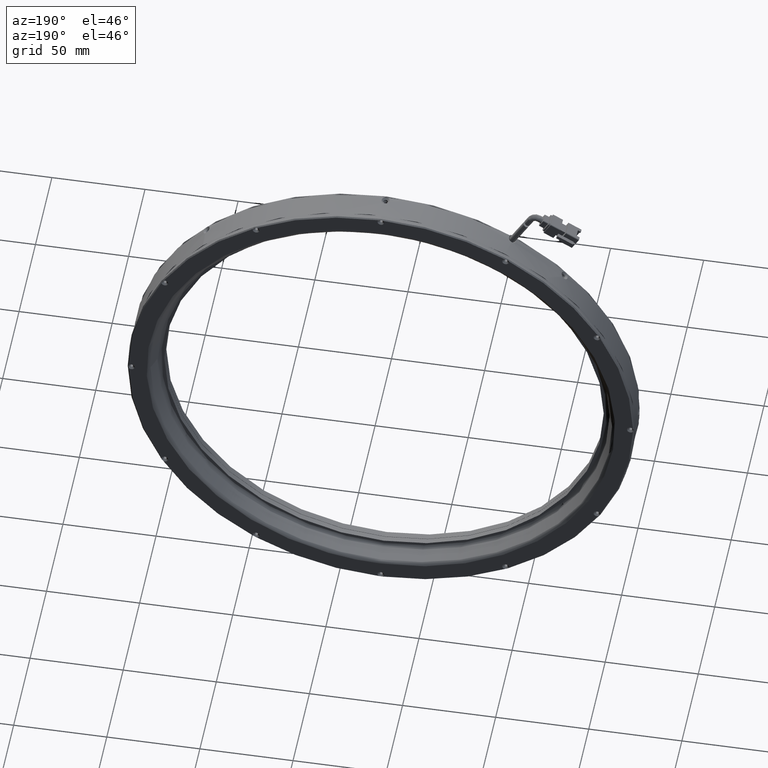
[diagram: clean part render]
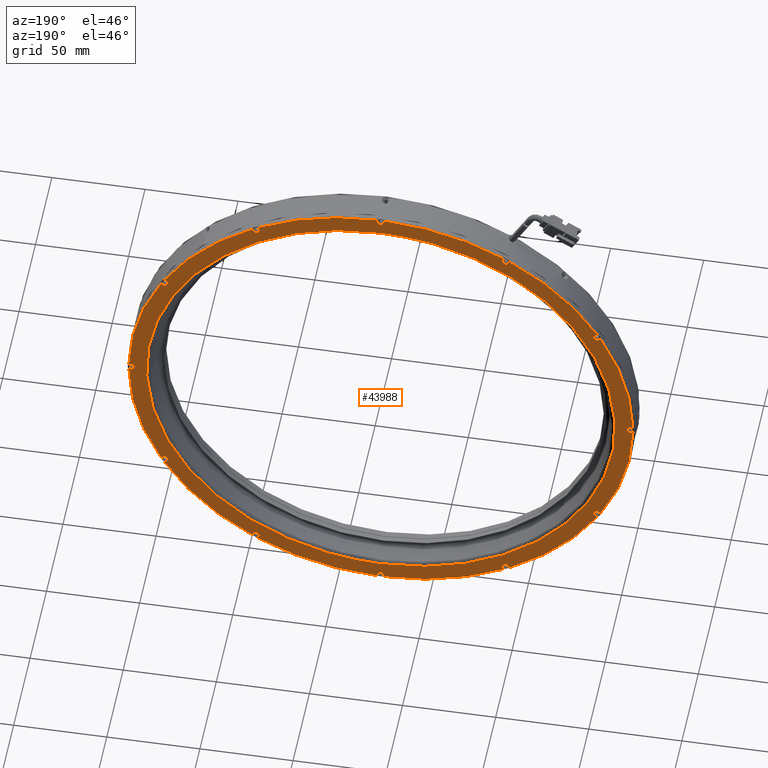
[diagram: same view with one face highlighted and labeled with its STEP entity id]
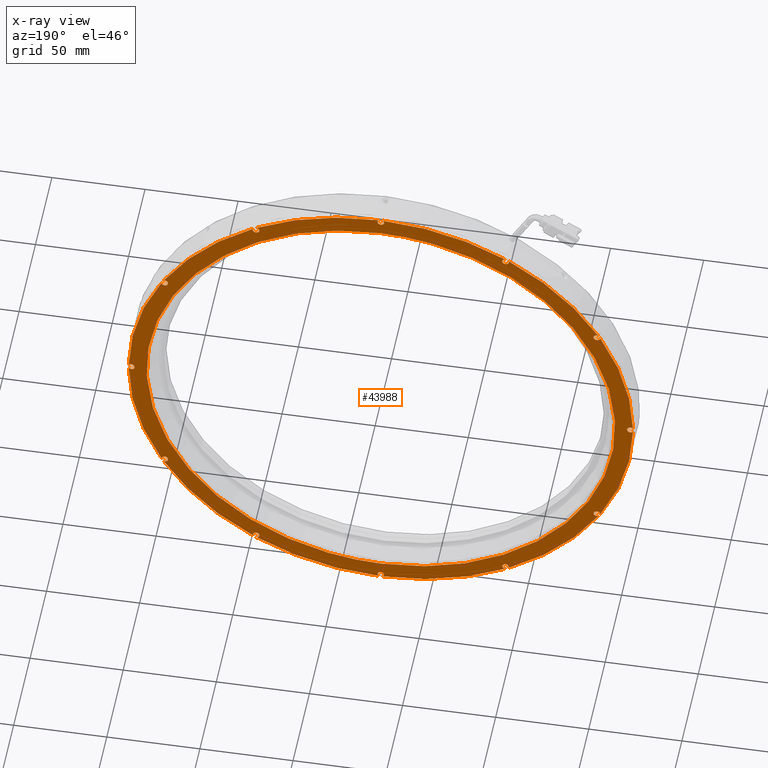
[diagram: x-ray of the same camera — body ghosted, the highlighted face saturated]
A machine part, auxiliary view. The second image highlights one B-rep face of the part: STEP entity #43988.
The next image is the same camera in x-ray: the body ghosted, the highlighted face saturated — about 0% of this face is hidden behind the body in this view.
In plain terms, the highlighted planar face has unit normal (0, -1, 0).
Its self-contained STEP definition (entity closure, byte-faithful):
#87 = EDGE_CURVE ( 'NONE', #46055, #33468, #56212, .T. ) ;
#397 = VERTEX_POINT ( 'NONE', #58740 ) ;
#735 = CIRCLE ( 'NONE', #42171, 1.800000000051801900 ) ;
#954 = ORIENTED_EDGE ( 'NONE', *, *, #66120, .F. ) ;
#1461 = CARTESIAN_POINT ( 'NONE',  ( -139.3504127892694600, 14.57220789511492700, 66.99999999999849400 ) ) ;
#1483 = DIRECTION ( 'NONE',  ( 1.000000000000000000, -2.562368502181399500E-017, 0.0000000000000000000 ) ) ;
#1619 = ORIENTED_EDGE ( 'NONE', *, *, #57725, .F. ) ;
#1810 = DIRECTION ( 'NONE',  ( -0.0000000000000000000, 1.000000000000000000, 0.0000000000000000000 ) ) ;
#2134 = CARTESIAN_POINT ( 'NONE',  ( -23.30300868215522000, 14.57220789505808300, 133.9999999999999700 ) ) ;
#2263 = EDGE_CURVE ( 'NONE', #45744, #34511, #88742, .T. ) ;
#2320 = DIRECTION ( 'NONE',  ( -0.0000000000000000000, 1.000000000000000000, 0.0000000000000000000 ) ) ;
#2548 = AXIS2_PLACEMENT_3D ( 'NONE', #1461, #73803, #11771 ) ;
#2838 = CIRCLE ( 'NONE', #2548, 1.800000000011667400 ) ;
#3347 = AXIS2_PLACEMENT_3D ( 'NONE', #93757, #31766, #104214 ) ;
#3668 = DIRECTION ( 'NONE',  ( -0.0000000000000000000, 1.000000000000000000, 0.0000000000000000000 ) ) ;
#3763 =( BOUNDED_CURVE ( )  B_SPLINE_CURVE ( 3, ( #86493, #3802, #96914, #34889 ),
 .UNSPECIFIED., .F., .F. ) 
 B_SPLINE_CURVE_WITH_KNOTS ( ( 4, 4 ),
 ( 0.0000000000000000000, 1.000000000000000000 ),
 .UNSPECIFIED. ) 
 CURVE ( )  GEOMETRIC_REPRESENTATION_ITEM ( )  RATIONAL_B_SPLINE_CURVE ( ( 1.000000000000000000, 0.3333333333333333700, 0.3333333333333333700, 1.000000000000000000 ) ) 
 REPRESENTATION_ITEM ( '' )  );
#3802 = CARTESIAN_POINT ( 'NONE',  ( -274.9155533077851600, 14.57220789505952600, -125.8062723128157400 ) ) ;
#4194 = CIRCLE ( 'NONE', #4631, 1.800000000053592100 ) ;
#4388 = AXIS2_PLACEMENT_3D ( 'NONE', #58273, #130742, #68716 ) ;
#4474 = FACE_OUTER_BOUND ( 'NONE', #57954, .T. ) ;
#4631 = AXIS2_PLACEMENT_3D ( 'NONE', #83107, #21106, #93501 ) ;
#4694 = DIRECTION ( 'NONE',  ( 0.0000000000000000000, 0.0000000000000000000, 1.000000000000000000 ) ) ;
#5810 = EDGE_CURVE ( 'NONE', #49932, #61310, #2838, .T. ) ;
#6170 = CARTESIAN_POINT ( 'NONE',  ( -23.30300868215334700, 14.57220789505808300, -132.2000000000116700 ) ) ;
#6945 = VERTEX_POINT ( 'NONE', #41454 ) ;
#7574 = VERTEX_POINT ( 'NONE', #13245 ) ;
#8687 = CARTESIAN_POINT ( 'NONE',  ( -23.30300868215522000, 14.57220789505808300, 132.1999999999825400 ) ) ;
#8778 = EDGE_CURVE ( 'NONE', #397, #77157, #28295, .T. ) ;
#10345 = EDGE_CURVE ( 'NONE', #123200, #126347, #79310, .T. ) ;
#10393 = VERTEX_POINT ( 'NONE', #64913 ) ;
#10632 = DIRECTION ( 'NONE',  ( -0.0000000000000000000, 1.000000000000000000, 0.0000000000000000000 ) ) ;
#10795 = DIRECTION ( 'NONE',  ( -2.551063935260010300E-017, -1.000000000000000000, 0.0000000000000000000 ) ) ;
#11413 = EDGE_CURVE ( 'NONE', #80408, #13850, #20533, .T. ) ;
#11771 = DIRECTION ( 'NONE',  ( 0.0000000000000000000, 0.0000000000000000000, 1.000000000000000000 ) ) ;
#12234 = EDGE_CURVE ( 'NONE', #126347, #46055, #86379, .T. ) ;
#12463 = DIRECTION ( 'NONE',  ( 0.0000000000000000000, 0.0000000000000000000, 1.000000000000000000 ) ) ;
#12491 = AXIS2_PLACEMENT_3D ( 'NONE', #23670, #96088, #34083 ) ;
#12924 = CARTESIAN_POINT ( 'NONE',  ( -23.30300868215381600, 14.57220789505951300, -2.420481350073888600E-014 ) ) ;
#13245 = CARTESIAN_POINT ( 'NONE',  ( -23.30300868215381600, 14.57220789505952000, -125.8062723128157400 ) ) ;
#13505 = DIRECTION ( 'NONE',  ( -0.0000000000000000000, 1.000000000000000000, 0.0000000000000000000 ) ) ;
#13600 = DIRECTION ( 'NONE',  ( -2.551063935260010300E-017, -1.000000000000000000, 0.0000000000000000000 ) ) ;
#13850 = VERTEX_POINT ( 'NONE', #103894 ) ;
#14361 = AXIS2_PLACEMENT_3D ( 'NONE', #53793, #126294, #64226 ) ;
#14508 = EDGE_CURVE ( 'NONE', #97987, #121566, #46320, .T. ) ;
#14540 = DIRECTION ( 'NONE',  ( -0.0000000000000000000, 1.000000000000000000, 0.0000000000000000000 ) ) ;
#15576 = AXIS2_PLACEMENT_3D ( 'NONE', #45725, #118216, #56133 ) ;
#15718 = DIRECTION ( 'NONE',  ( 0.0000000000000000000, -0.0000000000000000000, -1.000000000000000000 ) ) ;
#15798 = AXIS2_PLACEMENT_3D ( 'NONE', #33996, #106441, #44383 ) ;
#16383 = CARTESIAN_POINT ( 'NONE',  ( -24.44026429240801700, 14.57220789505466900, 135.3952238806009500 ) ) ;
#16869 = ORIENTED_EDGE ( 'NONE', *, *, #103349, .F. ) ;
#16916 = CIRCLE ( 'NONE', #115195, 1.800000000009224900 ) ;
#17733 = EDGE_CURVE ( 'NONE', #124441, #106722, #69343, .T. ) ;
#17745 = CIRCLE ( 'NONE', #105828, 1.800000000052620600 ) ;
#18331 = CARTESIAN_POINT ( 'NONE',  ( 43.69699131784510400, 14.57220789505808300, 116.0474041071154000 ) ) ;
#18583 = AXIS2_PLACEMENT_3D ( 'NONE', #76556, #14540, #86929 ) ;
#18642 = CARTESIAN_POINT ( 'NONE',  ( 110.6969913178461800, 14.57220789511492700, 9.114616613542514400E-013 ) ) ;
#18725 = EDGE_CURVE ( 'NONE', #121566, #31898, #65609, .T. ) ;
#18790 = CARTESIAN_POINT ( 'NONE',  ( 43.40971100904803100, 14.57220789505879000, -117.8243312368168500 ) ) ;
#19163 = ORIENTED_EDGE ( 'NONE', *, *, #42093, .F. ) ;
#19300 = CIRCLE ( 'NONE', #75859, 1.799999999988366500 ) ;
#20533 = CIRCLE ( 'NONE', #40922, 1.800000000010015800 ) ;
#20877 = EDGE_CURVE ( 'NONE', #59181, #70830, #59449, .T. ) ;
#21106 = DIRECTION ( 'NONE',  ( -0.0000000000000000000, 1.000000000000000000, 0.0000000000000000000 ) ) ;
#21908 = VERTEX_POINT ( 'NONE', #81665 ) ;
#22069 = CARTESIAN_POINT ( 'NONE',  ( 92.74439542496043000, 14.57220789511492700, 65.19999999999170400 ) ) ;
#22552 = CIRCLE ( 'NONE', #115596, 1.800000000009224900 ) ;
#23060 = AXIS2_PLACEMENT_3D ( 'NONE', #80660, #80223, #79763 ) ;
#23306 = DIRECTION ( 'NONE',  ( 1.000000000000000000, -2.562368502181398800E-017, 0.0000000000000000000 ) ) ;
#23670 = CARTESIAN_POINT ( 'NONE',  ( -90.30300868215356000, 14.57220789505808300, -116.0474041071149700 ) ) ;
#23973 = CARTESIAN_POINT ( 'NONE',  ( -24.44026429237689900, 14.57220789506076900, -135.3952238805951300 ) ) ;
#24236 = CARTESIAN_POINT ( 'NONE',  ( -139.3504127892685200, 14.57220789505808300, -65.19999999994755100 ) ) ;
#24411 = DIRECTION ( 'NONE',  ( -2.551063935260010300E-017, -1.000000000000000000, 0.0000000000000000000 ) ) ;
#24979 = EDGE_CURVE ( 'NONE', #65960, #31268, #22552, .T. ) ;
#25166 = DIRECTION ( 'NONE',  ( -0.0000000000000000000, 1.000000000000000000, 0.0000000000000000000 ) ) ;
#25331 = CARTESIAN_POINT ( 'NONE',  ( 93.38406694439618100, 14.57220789509844000, 68.68250418935548400 ) ) ;
#25369 = CARTESIAN_POINT ( 'NONE',  ( -158.6982325627267000, 14.57220789511215200, -1.137255610174809900 ) ) ;
#25894 = EDGE_CURVE ( 'NONE', #31898, #6945, #127590, .T. ) ;
#27183 = DIRECTION ( 'NONE',  ( -0.0000000000000000000, 1.000000000000000000, 0.0000000000000000000 ) ) ;
#27266 = CARTESIAN_POINT ( 'NONE',  ( 110.6969913178461800, 14.57220789511492700, 9.114616613542514400E-013 ) ) ;
#27951 = DIRECTION ( 'NONE',  ( -2.551063935260010300E-017, -1.000000000000000000, 0.0000000000000000000 ) ) ;
#28295 = CIRCLE ( 'NONE', #99376, 135.3999999999999800 ) ;
#28570 = EDGE_CURVE ( 'NONE', #29081, #126778, #84261, .T. ) ;
#28600 = FACE_BOUND ( 'NONE', #125757, .T. ) ;
#28697 = DIRECTION ( 'NONE',  ( 0.0000000000000000000, 0.0000000000000000000, 1.000000000000000000 ) ) ;
#28779 = DIRECTION ( 'NONE',  ( -2.551063935260010300E-017, -1.000000000000000000, 0.0000000000000000000 ) ) ;
#28843 = CARTESIAN_POINT ( 'NONE',  ( -139.9900843087045000, 14.57220789509791300, 68.68250418935535600 ) ) ;
#29015 = DIRECTION ( 'NONE',  ( 0.0000000000000000000, 0.0000000000000000000, 1.000000000000000000 ) ) ;
#29081 = VERTEX_POINT ( 'NONE', #6170 ) ;
#29533 = DIRECTION ( 'NONE',  ( -0.0000000000000000000, 1.000000000000000000, 0.0000000000000000000 ) ) ;
#29725 = CARTESIAN_POINT ( 'NONE',  ( -157.3030086821538300, 14.57220789511492700, -2.420481350073888600E-014 ) ) ;
#29869 = VERTEX_POINT ( 'NONE', #104143 ) ;
#31079 = CARTESIAN_POINT ( 'NONE',  ( 43.40971100907714200, 14.57220789505880500, 117.8243312368002500 ) ) ;
#31268 = VERTEX_POINT ( 'NONE', #93783 ) ;
#31766 = DIRECTION ( 'NONE',  ( -0.0000000000000000000, 1.000000000000000000, 0.0000000000000000000 ) ) ;
#31898 = VERTEX_POINT ( 'NONE', #96811 ) ;
#33468 = VERTEX_POINT ( 'NONE', #120287 ) ;
#33647 = CARTESIAN_POINT ( 'NONE',  ( 92.74439542496136800, 14.57220789505808300, -65.19999999994755100 ) ) ;
#33722 = ORIENTED_EDGE ( 'NONE', *, *, #43384, .F. ) ;
#33996 = CARTESIAN_POINT ( 'NONE',  ( 92.74439542496043000, 14.57220789511492700, 67.00000000000093800 ) ) ;
#34016 = ORIENTED_EDGE ( 'NONE', *, *, #132036, .F. ) ;
#34083 = DIRECTION ( 'NONE',  ( 0.0000000000000000000, 0.0000000000000000000, 1.000000000000000000 ) ) ;
#34511 = VERTEX_POINT ( 'NONE', #39410 ) ;
#34538 = EDGE_CURVE ( 'NONE', #13850, #49932, #133728, .T. ) ;
#34889 = CARTESIAN_POINT ( 'NONE',  ( -23.30300868215379500, 14.57220789505952000, 125.8062723128156900 ) ) ;
#35108 = ORIENTED_EDGE ( 'NONE', *, *, #8778, .F. ) ;
#35354 = CARTESIAN_POINT ( 'NONE',  ( -23.30300868215334700, 14.57220789505808300, -134.0000000000000300 ) ) ;
#36037 = CIRCLE ( 'NONE', #12491, 1.800000000053592100 ) ;
#36190 = AXIS2_PLACEMENT_3D ( 'NONE', #102613, #40608, #113062 ) ;
#36426 = ORIENTED_EDGE ( 'NONE', *, *, #10345, .F. ) ;
#37009 = CARTESIAN_POINT ( 'NONE',  ( 43.69699131784673800, 14.57220789505808300, -114.2474041070613900 ) ) ;
#37508 = EDGE_CURVE ( 'NONE', #31268, #65585, #16916, .T. ) ;
#37666 = DIRECTION ( 'NONE',  ( 0.0000000000000000000, 0.0000000000000000000, 1.000000000000000000 ) ) ;
#37987 = AXIS2_PLACEMENT_3D ( 'NONE', #29725, #102182, #40170 ) ;
#39287 = EDGE_CURVE ( 'NONE', #81361, #7574, #112495, .T. ) ;
#39410 = CARTESIAN_POINT ( 'NONE',  ( -157.3030086821538300, 14.57220789511492700, -1.799999999946091200 ) ) ;
#39667 = EDGE_CURVE ( 'NONE', #106722, #65960, #47889, .T. ) ;
#40170 = DIRECTION ( 'NONE',  ( 0.0000000000000000000, 0.0000000000000000000, 1.000000000000000000 ) ) ;
#40304 = CARTESIAN_POINT ( 'NONE',  ( -23.30300868215381600, 14.57220789505954000, -2.420481350073888600E-014 ) ) ;
#40507 = ORIENTED_EDGE ( 'NONE', *, *, #24979, .F. ) ;
#40608 = DIRECTION ( 'NONE',  ( -0.0000000000000000000, 1.000000000000000000, 0.0000000000000000000 ) ) ;
#40922 = AXIS2_PLACEMENT_3D ( 'NONE', #64236, #2320, #74655 ) ;
#41123 = ORIENTED_EDGE ( 'NONE', *, *, #111308, .F. ) ;
#41174 = CIRCLE ( 'NONE', #51204, 1.799999999946067000 ) ;
#41454 = CARTESIAN_POINT ( 'NONE',  ( 110.6969913178461800, 14.57220789511492700, 1.799999999946042800 ) ) ;
#42093 = EDGE_CURVE ( 'NONE', #33468, #80408, #63849, .T. ) ;
#42171 = AXIS2_PLACEMENT_3D ( 'NONE', #89161, #27183, #99563 ) ;
#42520 = VERTEX_POINT ( 'NONE', #60636 ) ;
#43367 = DIRECTION ( 'NONE',  ( -2.551063935260010300E-017, -1.000000000000000000, 0.0000000000000000000 ) ) ;
#43384 = EDGE_CURVE ( 'NONE', #80664, #108051, #17745, .T. ) ;
#43988 = ADVANCED_FACE ( 'NONE', ( #28600, #4474 ), #108559, .F. ) ;
#44383 = DIRECTION ( 'NONE',  ( 0.0000000000000000000, 0.0000000000000000000, 1.000000000000000000 ) ) ;
#44696 = CARTESIAN_POINT ( 'NONE',  ( -91.98551287156384100, 14.57220789504682800, -116.6870756265445100 ) ) ;
#45120 = EDGE_CURVE ( 'NONE', #7574, #81361, #3763, .T. ) ;
#45128 = EDGE_CURVE ( 'NONE', #97879, #10393, #96221, .T. ) ;
#45618 = AXIS2_PLACEMENT_3D ( 'NONE', #12924, #85298, #23306 ) ;
#45660 = AXIS2_PLACEMENT_3D ( 'NONE', #89950, #27951, #100355 ) ;
#45725 = CARTESIAN_POINT ( 'NONE',  ( -23.30300868215381600, 14.57220789505951300, -2.420481350073888600E-014 ) ) ;
#45727 = DIRECTION ( 'NONE',  ( 0.0000000000000000000, 0.0000000000000000000, 1.000000000000000000 ) ) ;
#45744 = VERTEX_POINT ( 'NONE', #51732 ) ;
#45856 = VERTEX_POINT ( 'NONE', #33647 ) ;
#45906 = CARTESIAN_POINT ( 'NONE',  ( 112.0922151984188300, 14.57220789511236000, 1.137255610174806800 ) ) ;
#46055 = VERTEX_POINT ( 'NONE', #16383 ) ;
#46320 = CIRCLE ( 'NONE', #53583, 135.3999999999999800 ) ;
#47181 = CARTESIAN_POINT ( 'NONE',  ( 228.3095359434775800, 14.57220789505952600, 125.8062723128156800 ) ) ;
#47889 = CIRCLE ( 'NONE', #15798, 1.800000000009224900 ) ;
#49741 = DIRECTION ( 'NONE',  ( -2.551063935260010300E-017, -1.000000000000000000, 0.0000000000000000000 ) ) ;
#49932 = VERTEX_POINT ( 'NONE', #28843 ) ;
#50119 = EDGE_CURVE ( 'NONE', #42520, #45744, #41174, .T. ) ;
#50571 = EDGE_CURVE ( 'NONE', #126982, #123200, #97534, .T. ) ;
#50612 = EDGE_CURVE ( 'NONE', #108051, #111894, #118599, .T. ) ;
#50673 = DIRECTION ( 'NONE',  ( 1.000000000000000000, -2.562368502181399500E-017, 0.0000000000000000000 ) ) ;
#51204 = AXIS2_PLACEMENT_3D ( 'NONE', #63704, #1810, #74140 ) ;
#51719 = ORIENTED_EDGE ( 'NONE', *, *, #2263, .F. ) ;
#51732 = CARTESIAN_POINT ( 'NONE',  ( -157.3030086821538300, 14.57220789511492700, 1.799999999946042800 ) ) ;
#52538 = DIRECTION ( 'NONE',  ( -0.0000000000000000000, 1.000000000000000000, 0.0000000000000000000 ) ) ;
#52576 = CARTESIAN_POINT ( 'NONE',  ( -90.30300868215518100, 14.57220789505808300, 116.0474041071139800 ) ) ;
#52727 = CARTESIAN_POINT ( 'NONE',  ( 43.69699131784510400, 14.57220789505808300, 116.0474041071154000 ) ) ;
#53205 = AXIS2_PLACEMENT_3D ( 'NONE', #65579, #3668, #75976 ) ;
#53583 = AXIS2_PLACEMENT_3D ( 'NONE', #111838, #49741, #122257 ) ;
#53793 = CARTESIAN_POINT ( 'NONE',  ( -139.3504127892685200, 14.57220789505808300, -67.00000000000017100 ) ) ;
#54138 = CARTESIAN_POINT ( 'NONE',  ( 92.74439542496043000, 14.57220789511492700, 67.00000000000093800 ) ) ;
#55417 = CIRCLE ( 'NONE', #36190, 1.800000000053134200 ) ;
#55467 = EDGE_CURVE ( 'NONE', #61310, #97879, #66116, .T. ) ;
#55481 = ORIENTED_EDGE ( 'NONE', *, *, #45120, .F. ) ;
#55978 = DIRECTION ( 'NONE',  ( -0.0000000000000000000, 1.000000000000000000, 0.0000000000000000000 ) ) ;
#56133 = DIRECTION ( 'NONE',  ( 1.000000000000000000, -2.562368502181398800E-017, 0.0000000000000000000 ) ) ;
#56212 = CIRCLE ( 'NONE', #23060, 135.4000000000000100 ) ;
#56492 = CARTESIAN_POINT ( 'NONE',  ( 94.52132255463308800, 14.57220789509844000, 66.71271969123243700 ) ) ;
#56976 = ORIENTED_EDGE ( 'NONE', *, *, #17733, .F. ) ;
#57119 = CARTESIAN_POINT ( 'NONE',  ( 92.74439542496136800, 14.57220789505808300, -68.80000000005115600 ) ) ;
#57172 = EDGE_CURVE ( 'NONE', #45856, #97987, #735, .T. ) ;
#57192 = AXIS2_PLACEMENT_3D ( 'NONE', #87178, #25166, #97601 ) ;
#57505 = ORIENTED_EDGE ( 'NONE', *, *, #39287, .F. ) ;
#57640 = CARTESIAN_POINT ( 'NONE',  ( -23.30300868215379500, 14.57220789505952000, 125.8062723128156900 ) ) ;
#57725 = EDGE_CURVE ( 'NONE', #126778, #71497, #63648, .T. ) ;
#57871 = EDGE_CURVE ( 'NONE', #125752, #397, #55417, .T. ) ;
#57891 = ORIENTED_EDGE ( 'NONE', *, *, #25894, .F. ) ;
#57954 = EDGE_LOOP ( 'NONE', ( #113003, #105165, #34016, #65766, #35108, #110305, #68155, #1619, #61466, #41123, #90979, #97454, #16869, #70119, #33722, #79228, #954, #132181, #93924, #51719, #84987, #88602, #79826, #122089, #102125, #131718, #96197, #19163, #113951, #88085, #36426, #132667, #87208, #126622, #69021, #60178, #40507, #77879, #56976, #104531, #57891, #125187 ) ) ;
#58101 = CARTESIAN_POINT ( 'NONE',  ( 228.3095359434775600, 14.57220789505952600, -125.8062723128157400 ) ) ;
#58112 = CIRCLE ( 'NONE', #126510, 135.3999999999999800 ) ;
#58273 = CARTESIAN_POINT ( 'NONE',  ( -23.30300868215334700, 14.57220789505808300, -134.0000000000000300 ) ) ;
#58303 = CARTESIAN_POINT ( 'NONE',  ( -22.16575307192955400, 14.57220789506098400, -135.3952238805949500 ) ) ;
#58337 = AXIS2_PLACEMENT_3D ( 'NONE', #118063, #55978, #128504 ) ;
#58532 = AXIS2_PLACEMENT_3D ( 'NONE', #72819, #10795, #83184 ) ;
#58740 = CARTESIAN_POINT ( 'NONE',  ( 45.37949550725633700, 14.57220789504692600, -116.6870756265443100 ) ) ;
#59181 = VERTEX_POINT ( 'NONE', #111789 ) ;
#59449 = CIRCLE ( 'NONE', #74901, 135.3999999999999800 ) ;
#60100 = AXIS2_PLACEMENT_3D ( 'NONE', #72654, #10632, #83031 ) ;
#60178 = ORIENTED_EDGE ( 'NONE', *, *, #37508, .F. ) ;
#60376 = CARTESIAN_POINT ( 'NONE',  ( -23.30300868215379500, 14.57220789505952000, 125.8062723128156900 ) ) ;
#60636 = CARTESIAN_POINT ( 'NONE',  ( -158.6982325627267000, 14.57220789511215200, 1.137255610174754800 ) ) ;
#61159 = EDGE_CURVE ( 'NONE', #100698, #126982, #65237, .T. ) ;
#61310 = VERTEX_POINT ( 'NONE', #123856 ) ;
#61466 = ORIENTED_EDGE ( 'NONE', *, *, #28570, .F. ) ;
#61566 = VERTEX_POINT ( 'NONE', #57119 ) ;
#62269 = CIRCLE ( 'NONE', #14361, 1.800000000052620600 ) ;
#62313 = EDGE_CURVE ( 'NONE', #34511, #96352, #76735, .T. ) ;
#62762 = CIRCLE ( 'NONE', #99369, 1.799999999945131300 ) ;
#63034 = DIRECTION ( 'NONE',  ( 0.0000000000000000000, 0.0000000000000000000, 1.000000000000000000 ) ) ;
#63166 = DIRECTION ( 'NONE',  ( 0.0000000000000000000, 0.0000000000000000000, 1.000000000000000000 ) ) ;
#63357 = DIRECTION ( 'NONE',  ( -2.551063935260010300E-017, -1.000000000000000000, 0.0000000000000000000 ) ) ;
#63648 = CIRCLE ( 'NONE', #45660, 135.4000000000000300 ) ;
#63704 = CARTESIAN_POINT ( 'NONE',  ( -157.3030086821538300, 14.57220789511492700, -2.420481350073888600E-014 ) ) ;
#63849 = CIRCLE ( 'NONE', #101226, 1.800000000010015800 ) ;
#64226 = DIRECTION ( 'NONE',  ( 0.0000000000000000000, 0.0000000000000000000, 1.000000000000000000 ) ) ;
#64236 = CARTESIAN_POINT ( 'NONE',  ( -90.30300868215518100, 14.57220789505808300, 116.0474041071139800 ) ) ;
#64575 = DIRECTION ( 'NONE',  ( 0.0000000000000000000, 0.0000000000000000000, 1.000000000000000000 ) ) ;
#64899 = CARTESIAN_POINT ( 'NONE',  ( 43.69699131784510400, 14.57220789505808300, 114.2474041071067900 ) ) ;
#64913 = CARTESIAN_POINT ( 'NONE',  ( -141.1273399189445600, 14.57220789509791300, 66.71271969122676600 ) ) ;
#65237 = CIRCLE ( 'NONE', #119310, 1.800000000008600300 ) ;
#65579 = CARTESIAN_POINT ( 'NONE',  ( 43.69699131784673800, 14.57220789505808300, -116.0474041071145200 ) ) ;
#65585 = VERTEX_POINT ( 'NONE', #25331 ) ;
#65609 = CIRCLE ( 'NONE', #3347, 1.799999999945131300 ) ;
#65766 = ORIENTED_EDGE ( 'NONE', *, *, #91257, .F. ) ;
#65960 = VERTEX_POINT ( 'NONE', #22069 ) ;
#66116 = CIRCLE ( 'NONE', #66154, 1.800000000011667400 ) ;
#66120 = EDGE_CURVE ( 'NONE', #29869, #114670, #117496, .T. ) ;
#66154 = AXIS2_PLACEMENT_3D ( 'NONE', #114616, #52538, #125070 ) ;
#66613 = DIRECTION ( 'NONE',  ( -0.0000000000000000000, 1.000000000000000000, 0.0000000000000000000 ) ) ;
#67418 = CARTESIAN_POINT ( 'NONE',  ( 94.52132255467834900, 14.57220789504721700, -66.71271969119824500 ) ) ;
#68155 = ORIENTED_EDGE ( 'NONE', *, *, #115753, .F. ) ;
#68716 = DIRECTION ( 'NONE',  ( 0.0000000000000000000, 0.0000000000000000000, 1.000000000000000000 ) ) ;
#69021 = ORIENTED_EDGE ( 'NONE', *, *, #83797, .F. ) ;
#69343 = CIRCLE ( 'NONE', #58532, 135.3999999999999800 ) ;
#70119 = ORIENTED_EDGE ( 'NONE', *, *, #50612, .F. ) ;
#70830 = VERTEX_POINT ( 'NONE', #23973 ) ;
#71497 = VERTEX_POINT ( 'NONE', #18790 ) ;
#71535 = CARTESIAN_POINT ( 'NONE',  ( -90.30300868215518100, 14.57220789505808300, 114.2474041071039600 ) ) ;
#72654 = CARTESIAN_POINT ( 'NONE',  ( -23.30300868215522000, 14.57220789505808300, 133.9999999999999700 ) ) ;
#72819 = CARTESIAN_POINT ( 'NONE',  ( -23.30300868215381600, 14.57220789505954000, -2.420481350073888600E-014 ) ) ;
#73803 = DIRECTION ( 'NONE',  ( -0.0000000000000000000, 1.000000000000000000, 0.0000000000000000000 ) ) ;
#74140 = DIRECTION ( 'NONE',  ( 0.0000000000000000000, 0.0000000000000000000, 1.000000000000000000 ) ) ;
#74206 = CARTESIAN_POINT ( 'NONE',  ( -90.30300868215356000, 14.57220789505808300, -114.2474041070613900 ) ) ;
#74466 = DIRECTION ( 'NONE',  ( -0.0000000000000000000, 1.000000000000000000, 0.0000000000000000000 ) ) ;
#74655 = DIRECTION ( 'NONE',  ( 0.0000000000000000000, 0.0000000000000000000, 1.000000000000000000 ) ) ;
#74901 = AXIS2_PLACEMENT_3D ( 'NONE', #125473, #63357, #1483 ) ;
#75508 = CARTESIAN_POINT ( 'NONE',  ( 92.74439542496043000, 14.57220789511492700, 67.00000000000093800 ) ) ;
#75617 = CARTESIAN_POINT ( 'NONE',  ( -23.30300868215381600, 14.57220789505954700, -2.420481350073888600E-014 ) ) ;
#75859 = AXIS2_PLACEMENT_3D ( 'NONE', #35354, #107805, #45727 ) ;
#75976 = DIRECTION ( 'NONE',  ( 0.0000000000000000000, 0.0000000000000000000, 1.000000000000000000 ) ) ;
#76368 = AXIS2_PLACEMENT_3D ( 'NONE', #52727, #125250, #63166 ) ;
#76556 = CARTESIAN_POINT ( 'NONE',  ( -139.3504127892694600, 14.57220789511492700, 66.99999999999849400 ) ) ;
#76735 = CIRCLE ( 'NONE', #37987, 1.799999999946067000 ) ;
#77157 = VERTEX_POINT ( 'NONE', #106811 ) ;
#77750 = DIRECTION ( 'NONE',  ( 0.0000000000000000000, -1.000000000000000000, 0.0000000000000000000 ) ) ;
#77879 = ORIENTED_EDGE ( 'NONE', *, *, #39667, .F. ) ;
#79228 = ORIENTED_EDGE ( 'NONE', *, *, #83215, .F. ) ;
#79310 = CIRCLE ( 'NONE', #117094, 1.800000000017454300 ) ;
#79763 = DIRECTION ( 'NONE',  ( 1.000000000000000000, -2.562368502181398800E-017, 0.0000000000000000000 ) ) ;
#79826 = ORIENTED_EDGE ( 'NONE', *, *, #45128, .F. ) ;
#80223 = DIRECTION ( 'NONE',  ( -2.551063935260010300E-017, -1.000000000000000000, 0.0000000000000000000 ) ) ;
#80408 = VERTEX_POINT ( 'NONE', #71535 ) ;
#80660 = CARTESIAN_POINT ( 'NONE',  ( -23.30300868215381600, 14.57220789505951300, -2.420481350073888600E-014 ) ) ;
#80664 = VERTEX_POINT ( 'NONE', #96788 ) ;
#80867 = AXIS2_PLACEMENT_3D ( 'NONE', #118965, #77750, #15718 ) ;
#81361 = VERTEX_POINT ( 'NONE', #60376 ) ;
#81665 = CARTESIAN_POINT ( 'NONE',  ( 45.37949550721237600, 14.57220789505659800, 116.6870756265589500 ) ) ;
#83031 = DIRECTION ( 'NONE',  ( 0.0000000000000000000, 0.0000000000000000000, 1.000000000000000000 ) ) ;
#83107 = CARTESIAN_POINT ( 'NONE',  ( -90.30300868215356000, 14.57220789505808300, -116.0474041071149700 ) ) ;
#83184 = DIRECTION ( 'NONE',  ( 1.000000000000000000, -2.562368502181399500E-017, 0.0000000000000000000 ) ) ;
#83215 = EDGE_CURVE ( 'NONE', #114670, #80664, #62269, .T. ) ;
#83221 = VERTEX_POINT ( 'NONE', #74206 ) ;
#83797 = EDGE_CURVE ( 'NONE', #65585, #21908, #111023, .T. ) ;
#84261 = CIRCLE ( 'NONE', #4388, 1.799999999988366500 ) ;
#84987 = ORIENTED_EDGE ( 'NONE', *, *, #50119, .F. ) ;
#85298 = DIRECTION ( 'NONE',  ( -2.551063935260010300E-017, -1.000000000000000000, 0.0000000000000000000 ) ) ;
#85539 = CARTESIAN_POINT ( 'NONE',  ( -139.3504127892694600, 14.57220789511492700, 65.19999999998682900 ) ) ;
#85868 = DIRECTION ( 'NONE',  ( 0.0000000000000000000, 0.0000000000000000000, 1.000000000000000000 ) ) ;
#85981 = DIRECTION ( 'NONE',  ( 1.000000000000000000, -2.562368502181399500E-017, 0.0000000000000000000 ) ) ;
#86379 = CIRCLE ( 'NONE', #60100, 1.800000000017454300 ) ;
#86429 = CARTESIAN_POINT ( 'NONE',  ( -23.30300868215381600, 14.57220789505951300, -2.420481350073888600E-014 ) ) ;
#86493 = CARTESIAN_POINT ( 'NONE',  ( -23.30300868215381600, 14.57220789505952000, -125.8062723128157400 ) ) ;
#86929 = DIRECTION ( 'NONE',  ( 0.0000000000000000000, 0.0000000000000000000, 1.000000000000000000 ) ) ;
#87178 = CARTESIAN_POINT ( 'NONE',  ( -139.3504127892685200, 14.57220789505808300, -67.00000000000017100 ) ) ;
#87208 = ORIENTED_EDGE ( 'NONE', *, *, #61159, .F. ) ;
#88085 = ORIENTED_EDGE ( 'NONE', *, *, #12234, .F. ) ;
#88602 = ORIENTED_EDGE ( 'NONE', *, *, #93638, .F. ) ;
#88742 = CIRCLE ( 'NONE', #125091, 1.799999999946067000 ) ;
#88748 = AXIS2_PLACEMENT_3D ( 'NONE', #40304, #112773, #50673 ) ;
#89161 = CARTESIAN_POINT ( 'NONE',  ( 92.74439542496136800, 14.57220789505808300, -66.99999999999934600 ) ) ;
#89950 = CARTESIAN_POINT ( 'NONE',  ( -23.30300868215381600, 14.57220789505950600, -2.420481350073888600E-014 ) ) ;
#90737 = CIRCLE ( 'NONE', #53205, 1.800000000053134200 ) ;
#90739 = DIRECTION ( 'NONE',  ( -0.0000000000000000000, 1.000000000000000000, 0.0000000000000000000 ) ) ;
#90811 = CARTESIAN_POINT ( 'NONE',  ( -23.30300868215381600, 14.57220789505954000, -2.420481350073888600E-014 ) ) ;
#90979 = ORIENTED_EDGE ( 'NONE', *, *, #20877, .F. ) ;
#91038 = DIRECTION ( 'NONE',  ( -0.0000000000000000000, 1.000000000000000000, 0.0000000000000000000 ) ) ;
#91257 = EDGE_CURVE ( 'NONE', #77157, #61566, #111163, .T. ) ;
#91568 = CARTESIAN_POINT ( 'NONE',  ( 92.74439542496136800, 14.57220789505808300, -66.99999999999934600 ) ) ;
#92703 = EDGE_CURVE ( 'NONE', #96352, #29869, #58112, .T. ) ;
#93501 = DIRECTION ( 'NONE',  ( 0.0000000000000000000, 0.0000000000000000000, 1.000000000000000000 ) ) ;
#93638 = EDGE_CURVE ( 'NONE', #10393, #42520, #109297, .T. ) ;
#93757 = CARTESIAN_POINT ( 'NONE',  ( 110.6969913178461800, 14.57220789511492700, 9.114616613542514400E-013 ) ) ;
#93783 = CARTESIAN_POINT ( 'NONE',  ( 92.74439542496043000, 14.57220789511492700, 68.80000000001015800 ) ) ;
#93924 = ORIENTED_EDGE ( 'NONE', *, *, #62313, .F. ) ;
#94039 = CARTESIAN_POINT ( 'NONE',  ( 112.0922151984189700, 14.57220789511222100, -1.137255610172573300 ) ) ;
#94380 = DIRECTION ( 'NONE',  ( 0.0000000000000000000, 0.0000000000000000000, 1.000000000000000000 ) ) ;
#96088 = DIRECTION ( 'NONE',  ( -0.0000000000000000000, 1.000000000000000000, 0.0000000000000000000 ) ) ;
#96197 = ORIENTED_EDGE ( 'NONE', *, *, #11413, .F. ) ;
#96221 = CIRCLE ( 'NONE', #18583, 1.800000000011667400 ) ;
#96352 = VERTEX_POINT ( 'NONE', #25369 ) ;
#96788 = CARTESIAN_POINT ( 'NONE',  ( -139.3504127892685200, 14.57220789505808300, -68.80000000005279000 ) ) ;
#96811 = CARTESIAN_POINT ( 'NONE',  ( 110.6969913178461800, 14.57220789511492700, -1.799999999944220000 ) ) ;
#96844 = DIRECTION ( 'NONE',  ( 1.000000000000000000, -2.562368502181398800E-017, 0.0000000000000000000 ) ) ;
#96914 = CARTESIAN_POINT ( 'NONE',  ( -274.9155533077851600, 14.57220789505952600, 125.8062723128157200 ) ) ;
#97454 = ORIENTED_EDGE ( 'NONE', *, *, #103970, .F. ) ;
#97534 = CIRCLE ( 'NONE', #106013, 135.3999999999999800 ) ;
#97601 = DIRECTION ( 'NONE',  ( 0.0000000000000000000, 0.0000000000000000000, 1.000000000000000000 ) ) ;
#97879 = VERTEX_POINT ( 'NONE', #85539 ) ;
#97987 = VERTEX_POINT ( 'NONE', #67418 ) ;
#99369 = AXIS2_PLACEMENT_3D ( 'NONE', #27266, #99652, #37666 ) ;
#99376 = AXIS2_PLACEMENT_3D ( 'NONE', #105415, #43367, #115847 ) ;
#99563 = DIRECTION ( 'NONE',  ( 0.0000000000000000000, 0.0000000000000000000, 1.000000000000000000 ) ) ;
#99652 = DIRECTION ( 'NONE',  ( -0.0000000000000000000, 1.000000000000000000, 0.0000000000000000000 ) ) ;
#100355 = DIRECTION ( 'NONE',  ( 1.000000000000000000, -2.562368502181398200E-017, 0.0000000000000000000 ) ) ;
#100698 = VERTEX_POINT ( 'NONE', #64899 ) ;
#101226 = AXIS2_PLACEMENT_3D ( 'NONE', #52576, #125114, #63034 ) ;
#101242 = DIRECTION ( 'NONE',  ( 1.000000000000000000, -2.562368502181399500E-017, 0.0000000000000000000 ) ) ;
#102005 = DIRECTION ( 'NONE',  ( 0.0000000000000000000, 0.0000000000000000000, 1.000000000000000000 ) ) ;
#102125 = ORIENTED_EDGE ( 'NONE', *, *, #5810, .F. ) ;
#102182 = DIRECTION ( 'NONE',  ( -0.0000000000000000000, 1.000000000000000000, 0.0000000000000000000 ) ) ;
#102613 = CARTESIAN_POINT ( 'NONE',  ( 43.69699131784673800, 14.57220789505808300, -116.0474041071145200 ) ) ;
#103005 = DIRECTION ( 'NONE',  ( -0.0000000000000000000, 1.000000000000000000, 0.0000000000000000000 ) ) ;
#103349 = EDGE_CURVE ( 'NONE', #111894, #83221, #4194, .T. ) ;
#103467 = CARTESIAN_POINT ( 'NONE',  ( -157.3030086821538300, 14.57220789511492700, -2.420481350073888600E-014 ) ) ;
#103894 = CARTESIAN_POINT ( 'NONE',  ( -91.98551287152500300, 14.57220789505627900, 116.6870756265563400 ) ) ;
#103970 = EDGE_CURVE ( 'NONE', #83221, #59181, #36037, .T. ) ;
#104143 = CARTESIAN_POINT ( 'NONE',  ( -141.1273399189856800, 14.57220789504704300, -66.71271969119911200 ) ) ;
#104214 = DIRECTION ( 'NONE',  ( 0.0000000000000000000, 0.0000000000000000000, 1.000000000000000000 ) ) ;
#104531 = ORIENTED_EDGE ( 'NONE', *, *, #107967, .F. ) ;
#105165 = ORIENTED_EDGE ( 'NONE', *, *, #57172, .F. ) ;
#105415 = CARTESIAN_POINT ( 'NONE',  ( -23.30300868215381600, 14.57220789505955400, -2.420481350073888600E-014 ) ) ;
#105828 = AXIS2_PLACEMENT_3D ( 'NONE', #128684, #66613, #4694 ) ;
#106013 = AXIS2_PLACEMENT_3D ( 'NONE', #75617, #13600, #85981 ) ;
#106441 = DIRECTION ( 'NONE',  ( -0.0000000000000000000, 1.000000000000000000, 0.0000000000000000000 ) ) ;
#106722 = VERTEX_POINT ( 'NONE', #56492 ) ;
#106811 = CARTESIAN_POINT ( 'NONE',  ( 93.38406694439144900, 14.57220789504721700, -68.68250418940790800 ) ) ;
#107805 = DIRECTION ( 'NONE',  ( -0.0000000000000000000, 1.000000000000000000, 0.0000000000000000000 ) ) ;
#107967 = EDGE_CURVE ( 'NONE', #6945, #124441, #62762, .T. ) ;
#108051 = VERTEX_POINT ( 'NONE', #122329 ) ;
#108559 = PLANE ( 'NONE',  #80867 ) ;
#109297 = CIRCLE ( 'NONE', #15576, 135.4000000000000100 ) ;
#110305 = ORIENTED_EDGE ( 'NONE', *, *, #57871, .F. ) ;
#111023 = CIRCLE ( 'NONE', #45618, 135.4000000000000100 ) ;
#111163 = CIRCLE ( 'NONE', #58337, 1.800000000051801900 ) ;
#111308 = EDGE_CURVE ( 'NONE', #70830, #29081, #19300, .T. ) ;
#111763 = CIRCLE ( 'NONE', #113228, 1.800000000051801900 ) ;
#111789 = CARTESIAN_POINT ( 'NONE',  ( -90.01572837335510300, 14.57220789505880500, -117.8243312368171300 ) ) ;
#111838 = CARTESIAN_POINT ( 'NONE',  ( -23.30300868215381600, 14.57220789505953300, -2.420481350073888600E-014 ) ) ;
#111894 = VERTEX_POINT ( 'NONE', #44696 ) ;
#112495 =( BOUNDED_CURVE ( )  B_SPLINE_CURVE ( 3, ( #57640, #47181, #58101, #130563 ),
 .UNSPECIFIED., .F., .F. ) 
 B_SPLINE_CURVE_WITH_KNOTS ( ( 4, 4 ),
 ( 0.0000000000000000000, 1.000000000000000000 ),
 .UNSPECIFIED. ) 
 CURVE ( )  GEOMETRIC_REPRESENTATION_ITEM ( )  RATIONAL_B_SPLINE_CURVE ( ( 1.000000000000000000, 0.3333333333333333700, 0.3333333333333333700, 1.000000000000000000 ) ) 
 REPRESENTATION_ITEM ( '' )  );
#112773 = DIRECTION ( 'NONE',  ( -2.551063935260010300E-017, -1.000000000000000000, 0.0000000000000000000 ) ) ;
#113003 = ORIENTED_EDGE ( 'NONE', *, *, #14508, .F. ) ;
#113062 = DIRECTION ( 'NONE',  ( 0.0000000000000000000, 0.0000000000000000000, 1.000000000000000000 ) ) ;
#113228 = AXIS2_PLACEMENT_3D ( 'NONE', #91568, #29533, #102005 ) ;
#113951 = ORIENTED_EDGE ( 'NONE', *, *, #87, .F. ) ;
#114616 = CARTESIAN_POINT ( 'NONE',  ( -139.3504127892694600, 14.57220789511492700, 66.99999999999849400 ) ) ;
#114670 = VERTEX_POINT ( 'NONE', #24236 ) ;
#115195 = AXIS2_PLACEMENT_3D ( 'NONE', #54138, #126627, #64575 ) ;
#115596 = AXIS2_PLACEMENT_3D ( 'NONE', #75508, #13505, #85868 ) ;
#115753 = EDGE_CURVE ( 'NONE', #71497, #125752, #90737, .T. ) ;
#115847 = DIRECTION ( 'NONE',  ( 1.000000000000000000, -2.562368502181399500E-017, 0.0000000000000000000 ) ) ;
#117094 = AXIS2_PLACEMENT_3D ( 'NONE', #2134, #74466, #12463 ) ;
#117496 = CIRCLE ( 'NONE', #57192, 1.800000000052620600 ) ;
#118063 = CARTESIAN_POINT ( 'NONE',  ( 92.74439542496136800, 14.57220789505808300, -66.99999999999934600 ) ) ;
#118216 = DIRECTION ( 'NONE',  ( -2.551063935260010300E-017, -1.000000000000000000, 0.0000000000000000000 ) ) ;
#118599 = CIRCLE ( 'NONE', #128704, 135.4000000000000100 ) ;
#118965 = CARTESIAN_POINT ( 'NONE',  ( -159.3030086821538300, 14.57220789505951300, -2.420481350073888600E-014 ) ) ;
#119310 = AXIS2_PLACEMENT_3D ( 'NONE', #18331, #90739, #28697 ) ;
#120287 = CARTESIAN_POINT ( 'NONE',  ( -90.01572837338650900, 14.57220789505879000, 117.8243312367993200 ) ) ;
#121566 = VERTEX_POINT ( 'NONE', #94039 ) ;
#122089 = ORIENTED_EDGE ( 'NONE', *, *, #55467, .F. ) ;
#122257 = DIRECTION ( 'NONE',  ( 1.000000000000000000, -2.562368502181399500E-017, 0.0000000000000000000 ) ) ;
#122329 = CARTESIAN_POINT ( 'NONE',  ( -139.9900843086983900, 14.57220789504702900, -68.68250418940949900 ) ) ;
#123200 = VERTEX_POINT ( 'NONE', #123525 ) ;
#123525 = CARTESIAN_POINT ( 'NONE',  ( -22.16575307190246100, 14.57220789505467600, 135.3952238806009500 ) ) ;
#123856 = CARTESIAN_POINT ( 'NONE',  ( -139.3504127892694600, 14.57220789511492700, 68.80000000001015800 ) ) ;
#124441 = VERTEX_POINT ( 'NONE', #45906 ) ;
#125070 = DIRECTION ( 'NONE',  ( 0.0000000000000000000, 0.0000000000000000000, 1.000000000000000000 ) ) ;
#125091 = AXIS2_PLACEMENT_3D ( 'NONE', #103467, #103005, #94380 ) ;
#125114 = DIRECTION ( 'NONE',  ( -0.0000000000000000000, 1.000000000000000000, 0.0000000000000000000 ) ) ;
#125187 = ORIENTED_EDGE ( 'NONE', *, *, #18725, .F. ) ;
#125250 = DIRECTION ( 'NONE',  ( -0.0000000000000000000, 1.000000000000000000, 0.0000000000000000000 ) ) ;
#125473 = CARTESIAN_POINT ( 'NONE',  ( -23.30300868215381600, 14.57220789505954000, -2.420481350073888600E-014 ) ) ;
#125752 = VERTEX_POINT ( 'NONE', #37009 ) ;
#125757 = EDGE_LOOP ( 'NONE', ( #55481, #57505 ) ) ;
#126294 = DIRECTION ( 'NONE',  ( -0.0000000000000000000, 1.000000000000000000, 0.0000000000000000000 ) ) ;
#126347 = VERTEX_POINT ( 'NONE', #8687 ) ;
#126510 = AXIS2_PLACEMENT_3D ( 'NONE', #90811, #28779, #101242 ) ;
#126622 = ORIENTED_EDGE ( 'NONE', *, *, #133933, .F. ) ;
#126627 = DIRECTION ( 'NONE',  ( -0.0000000000000000000, 1.000000000000000000, 0.0000000000000000000 ) ) ;
#126778 = VERTEX_POINT ( 'NONE', #58303 ) ;
#126982 = VERTEX_POINT ( 'NONE', #31079 ) ;
#127590 = CIRCLE ( 'NONE', #127899, 1.799999999945131300 ) ;
#127899 = AXIS2_PLACEMENT_3D ( 'NONE', #18642, #91038, #29015 ) ;
#128504 = DIRECTION ( 'NONE',  ( 0.0000000000000000000, 0.0000000000000000000, 1.000000000000000000 ) ) ;
#128684 = CARTESIAN_POINT ( 'NONE',  ( -139.3504127892685200, 14.57220789505808300, -67.00000000000017100 ) ) ;
#128704 = AXIS2_PLACEMENT_3D ( 'NONE', #86429, #24411, #96844 ) ;
#130563 = CARTESIAN_POINT ( 'NONE',  ( -23.30300868215381600, 14.57220789505952000, -125.8062723128157400 ) ) ;
#130742 = DIRECTION ( 'NONE',  ( -0.0000000000000000000, 1.000000000000000000, 0.0000000000000000000 ) ) ;
#131691 = CIRCLE ( 'NONE', #76368, 1.800000000008600300 ) ;
#131718 = ORIENTED_EDGE ( 'NONE', *, *, #34538, .F. ) ;
#132036 = EDGE_CURVE ( 'NONE', #61566, #45856, #111763, .T. ) ;
#132181 = ORIENTED_EDGE ( 'NONE', *, *, #92703, .F. ) ;
#132667 = ORIENTED_EDGE ( 'NONE', *, *, #50571, .F. ) ;
#133728 = CIRCLE ( 'NONE', #88748, 135.3999999999999800 ) ;
#133933 = EDGE_CURVE ( 'NONE', #21908, #100698, #131691, .T. ) ;